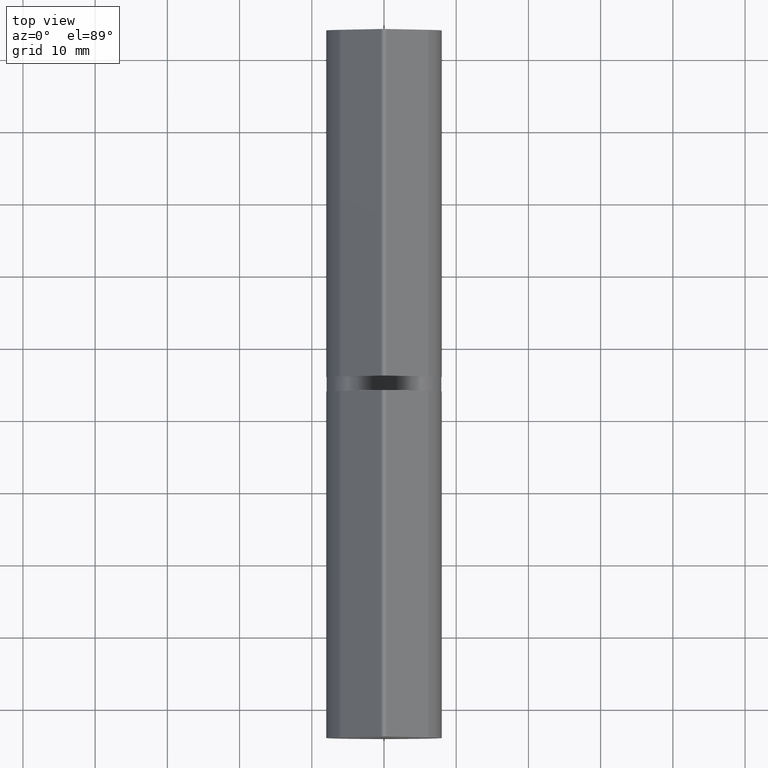
[diagram: clean part render]
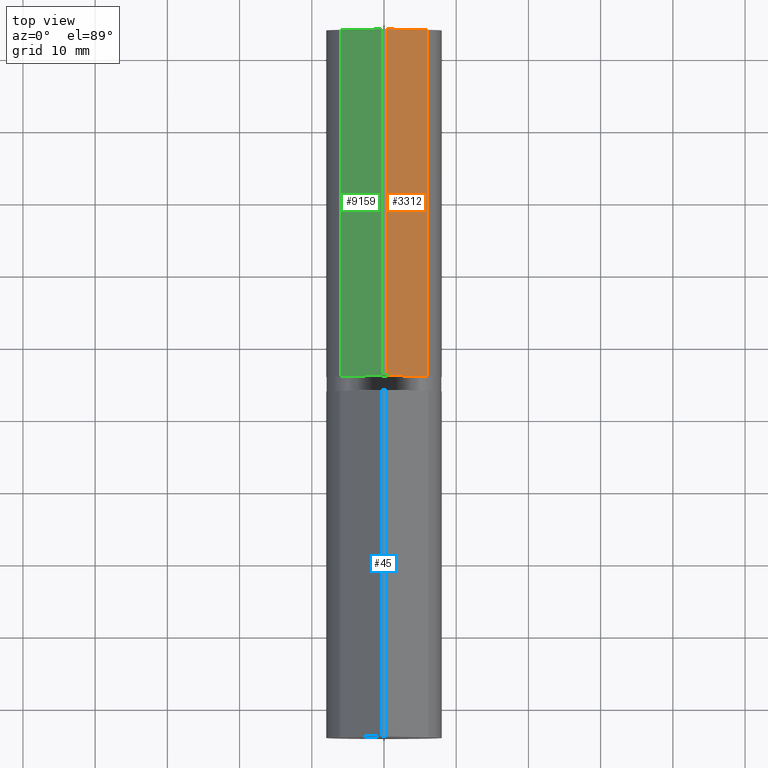
[diagram: same view with three faces highlighted in distinct colors, each labeled with its STEP entity id]
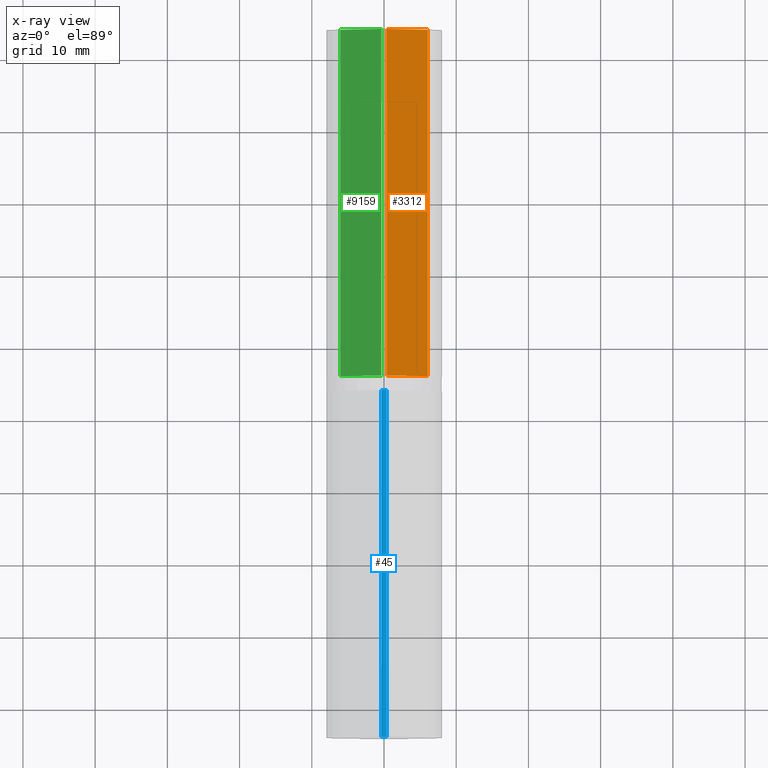
[diagram: x-ray of the same camera — body ghosted, the three highlighted faces saturated]
A machine part, top view with three faces highlighted in distinct colors.
The next image is the same camera in x-ray (body ghosted, the three faces saturated) — at least one of them is partly hidden behind the body in this view.
Their STEP definitions:

[orange] entity #3312 — the highlighted planar face has unit normal (-0.7581, 0, -0.6522).
#803 = LINE ( 'NONE', #10512, #13186 ) ;
#1313 = DIRECTION ( 'NONE',  ( 0.6521739130434782705, 0.000000000000000000, 0.7580693814853345369 ) ) ;
#1409 = LINE ( 'NONE', #12763, #9427 ) ;
#1417 = AXIS2_PLACEMENT_3D ( 'NONE', #5837, #11100, #2867 ) ;
#1641 = FACE_OUTER_BOUND ( 'NONE', #11078, .T. ) ;
#2027 = CARTESIAN_POINT ( 'NONE',  ( -6.064555051882675407, -24.00000000000000711, 5.217391304347824388 ) ) ;
#2230 = CARTESIAN_POINT ( 'NONE',  ( -0.3790346907426674350, -24.00000000000000711, 11.82608695652173658 ) ) ;
#2867 = DIRECTION ( 'NONE',  ( -0.6521739130434781595, 0.000000000000000000, -0.7580693814853346479 ) ) ;
#3312 = ADVANCED_FACE ( 'NONE', ( #1641 ), #10059, .F. ) ;
#3444 = VERTEX_POINT ( 'NONE', #4388 ) ;
#3669 = VECTOR ( 'NONE', #1313, 1000.000000000000000 ) ;
#4388 = CARTESIAN_POINT ( 'NONE',  ( -0.3790346907426674350, 24.00000000000000711, 11.82608695652173658 ) ) ;
#4417 = ORIENTED_EDGE ( 'NONE', *, *, #7807, .F. ) ;
#5598 = VECTOR ( 'NONE', #5873, 1000.000000000000000 ) ;
#5837 = CARTESIAN_POINT ( 'NONE',  ( -6.064555051882675407, 24.00000000000000711, 5.217391304347824388 ) ) ;
#5873 = DIRECTION ( 'NONE',  ( 0.000000000000000000, -1.000000000000000000, 0.000000000000000000 ) ) ;
#6264 = CARTESIAN_POINT ( 'NONE',  ( -6.064555051882675407, 24.00000000000000711, 5.217391304347824388 ) ) ;
#6413 = EDGE_CURVE ( 'NONE', #9375, #9726, #803, .T. ) ;
#6553 = CARTESIAN_POINT ( 'NONE',  ( -6.064555051882675407, 24.00000000000000711, 5.217391304347824388 ) ) ;
#6781 = EDGE_CURVE ( 'NONE', #8315, #3444, #9133, .T. ) ;
#7807 = EDGE_CURVE ( 'NONE', #3444, #9726, #8313, .T. ) ;
#8287 = ORIENTED_EDGE ( 'NONE', *, *, #6413, .T. ) ;
#8313 = LINE ( 'NONE', #9975, #5598 ) ;
#8315 = VERTEX_POINT ( 'NONE', #6553 ) ;
#9107 = EDGE_CURVE ( 'NONE', #8315, #9375, #1409, .T. ) ;
#9133 = LINE ( 'NONE', #6264, #3669 ) ;
#9225 = ORIENTED_EDGE ( 'NONE', *, *, #9107, .T. ) ;
#9375 = VERTEX_POINT ( 'NONE', #2027 ) ;
#9427 = VECTOR ( 'NONE', #12801, 1000.000000000000000 ) ;
#9726 = VERTEX_POINT ( 'NONE', #2230 ) ;
#9882 = ORIENTED_EDGE ( 'NONE', *, *, #6781, .F. ) ;
#9975 = CARTESIAN_POINT ( 'NONE',  ( -0.3790346907426674350, 24.00000000000000711, 11.82608695652173658 ) ) ;
#10059 = PLANE ( 'NONE',  #1417 ) ;
#10512 = CARTESIAN_POINT ( 'NONE',  ( -6.064555051882675407, -24.00000000000000711, 5.217391304347824388 ) ) ;
#11078 = EDGE_LOOP ( 'NONE', ( #8287, #4417, #9882, #9225 ) ) ;
#11100 = DIRECTION ( 'NONE',  ( 0.7580693814853346479, 0.000000000000000000, -0.6521739130434781595 ) ) ;
#12506 = DIRECTION ( 'NONE',  ( 0.6521739130434782705, 0.000000000000000000, 0.7580693814853345369 ) ) ;
#12763 = CARTESIAN_POINT ( 'NONE',  ( -6.064555051882675407, 24.00000000000000711, 5.217391304347824388 ) ) ;
#12801 = DIRECTION ( 'NONE',  ( 0.000000000000000000, -1.000000000000000000, 0.000000000000000000 ) ) ;
#13186 = VECTOR ( 'NONE', #12506, 1000.000000000000000 ) ;

[blue] entity #45 — the highlighted cylindrical surface (edge-blend (fillet) strip) has radius 0.5 mm, axis along (-0, -1, -0).
#45 = ADVANCED_FACE ( 'NONE', ( #7596 ), #2153, .T. ) ;
#615 = CARTESIAN_POINT ( 'NONE',  ( 0.3790346907426678236, 24.00000000000000000, 11.82608695652174013 ) ) ;
#1393 = DIRECTION ( 'NONE',  ( -0.000000000000000000, -1.000000000000000000, -0.000000000000000000 ) ) ;
#1948 = VERTEX_POINT ( 'NONE', #2628 ) ;
#2116 = VERTEX_POINT ( 'NONE', #615 ) ;
#2153 = CYLINDRICAL_SURFACE ( 'NONE', #4824, 0.5000000000000004441 ) ;
#2628 = CARTESIAN_POINT ( 'NONE',  ( -0.3790346907426679901, 24.00000000000000000, 11.82608695652174013 ) ) ;
#3088 = CARTESIAN_POINT ( 'NONE',  ( -0.3790346907426679901, -24.00000000000000000, 11.82608695652174013 ) ) ;
#3769 = CARTESIAN_POINT ( 'NONE',  ( 0.000000000000000000, -24.00000000000000000, 11.50000000000000000 ) ) ;
#3829 = CARTESIAN_POINT ( 'NONE',  ( 0.000000000000000000, 24.00000000000000000, 11.50000000000000000 ) ) ;
#4180 = EDGE_CURVE ( 'NONE', #1948, #9915, #7558, .T. ) ;
#4456 = CIRCLE ( 'NONE', #11753, 0.5000000000000004441 ) ;
#4824 = AXIS2_PLACEMENT_3D ( 'NONE', #5600, #1393, #8719 ) ;
#5537 = ORIENTED_EDGE ( 'NONE', *, *, #12728, .F. ) ;
#5600 = CARTESIAN_POINT ( 'NONE',  ( 0.000000000000000000, 24.00000000000000000, 11.50000000000000000 ) ) ;
#5742 = ORIENTED_EDGE ( 'NONE', *, *, #4180, .T. ) ;
#6074 = DIRECTION ( 'NONE',  ( -0.000000000000000000, -1.000000000000000000, -0.000000000000000000 ) ) ;
#6911 = DIRECTION ( 'NONE',  ( 0.000000000000000000, 0.000000000000000000, 1.000000000000000000 ) ) ;
#7201 = LINE ( 'NONE', #12164, #11061 ) ;
#7558 = LINE ( 'NONE', #10312, #13364 ) ;
#7596 = FACE_OUTER_BOUND ( 'NONE', #10105, .T. ) ;
#8242 = ORIENTED_EDGE ( 'NONE', *, *, #8744, .T. ) ;
#8486 = EDGE_CURVE ( 'NONE', #1948, #2116, #4456, .T. ) ;
#8719 = DIRECTION ( 'NONE',  ( 0.000000000000000000, 0.000000000000000000, -1.000000000000000000 ) ) ;
#8744 = EDGE_CURVE ( 'NONE', #9915, #12622, #11200, .T. ) ;
#9110 = ORIENTED_EDGE ( 'NONE', *, *, #8486, .F. ) ;
#9915 = VERTEX_POINT ( 'NONE', #3088 ) ;
#10105 = EDGE_LOOP ( 'NONE', ( #8242, #5537, #9110, #5742 ) ) ;
#10312 = CARTESIAN_POINT ( 'NONE',  ( -0.3790346907426679901, 24.00000000000000000, 11.82608695652174013 ) ) ;
#10360 = AXIS2_PLACEMENT_3D ( 'NONE', #3769, #12091, #6911 ) ;
#10972 = DIRECTION ( 'NONE',  ( 0.000000000000000000, 1.000000000000000000, 0.000000000000000000 ) ) ;
#11006 = DIRECTION ( 'NONE',  ( 0.000000000000000000, 0.000000000000000000, 1.000000000000000000 ) ) ;
#11061 = VECTOR ( 'NONE', #6074, 1000.000000000000000 ) ;
#11200 = CIRCLE ( 'NONE', #10360, 0.5000000000000004441 ) ;
#11753 = AXIS2_PLACEMENT_3D ( 'NONE', #3829, #10972, #11006 ) ;
#12091 = DIRECTION ( 'NONE',  ( 0.000000000000000000, 1.000000000000000000, 0.000000000000000000 ) ) ;
#12164 = CARTESIAN_POINT ( 'NONE',  ( 0.3790346907426678236, 24.00000000000000000, 11.82608695652174013 ) ) ;
#12387 = DIRECTION ( 'NONE',  ( -0.000000000000000000, -1.000000000000000000, -0.000000000000000000 ) ) ;
#12622 = VERTEX_POINT ( 'NONE', #12942 ) ;
#12728 = EDGE_CURVE ( 'NONE', #2116, #12622, #7201, .T. ) ;
#12942 = CARTESIAN_POINT ( 'NONE',  ( 0.3790346907426678236, -24.00000000000000000, 11.82608695652174013 ) ) ;
#13364 = VECTOR ( 'NONE', #12387, 1000.000000000000000 ) ;

[green] entity #9159 — the highlighted planar face has unit normal (0.7581, -0, -0.6522).
#21 = CARTESIAN_POINT ( 'NONE',  ( 0.3790346907426672685, 24.00000000000000711, 11.82608695652173658 ) ) ;
#619 = CARTESIAN_POINT ( 'NONE',  ( 0.3790346907426672685, 24.00000000000000711, 11.82608695652173658 ) ) ;
#669 = DIRECTION ( 'NONE',  ( -0.6521739130434781595, 0.000000000000000000, 0.7580693814853346479 ) ) ;
#690 = CARTESIAN_POINT ( 'NONE',  ( 6.064555051882675407, 24.00000000000000711, 5.217391304347824388 ) ) ;
#1092 = AXIS2_PLACEMENT_3D ( 'NONE', #619, #4791, #669 ) ;
#1235 = VERTEX_POINT ( 'NONE', #4015 ) ;
#1401 = VERTEX_POINT ( 'NONE', #11069 ) ;
#1986 = EDGE_CURVE ( 'NONE', #3372, #1401, #4369, .T. ) ;
#2458 = CARTESIAN_POINT ( 'NONE',  ( 0.3790346907426672685, -24.00000000000000711, 11.82608695652173658 ) ) ;
#3308 = ORIENTED_EDGE ( 'NONE', *, *, #7660, .F. ) ;
#3372 = VERTEX_POINT ( 'NONE', #13313 ) ;
#3572 = DIRECTION ( 'NONE',  ( 0.6521739130434782705, -0.000000000000000000, -0.7580693814853345369 ) ) ;
#3837 = VECTOR ( 'NONE', #12867, 1000.000000000000000 ) ;
#3977 = ORIENTED_EDGE ( 'NONE', *, *, #6233, .F. ) ;
#4015 = CARTESIAN_POINT ( 'NONE',  ( 6.064555051882675407, -24.00000000000000711, 5.217391304347824388 ) ) ;
#4369 = LINE ( 'NONE', #21, #9983 ) ;
#4791 = DIRECTION ( 'NONE',  ( -0.7580693814853346479, 0.000000000000000000, -0.6521739130434781595 ) ) ;
#5162 = VECTOR ( 'NONE', #3572, 1000.000000000000000 ) ;
#5174 = LINE ( 'NONE', #6976, #5162 ) ;
#5660 = CARTESIAN_POINT ( 'NONE',  ( 6.064555051882675407, 24.00000000000000711, 5.217391304347824388 ) ) ;
#6053 = DIRECTION ( 'NONE',  ( 0.000000000000000000, -1.000000000000000000, 0.000000000000000000 ) ) ;
#6233 = EDGE_CURVE ( 'NONE', #3372, #7621, #5174, .T. ) ;
#6976 = CARTESIAN_POINT ( 'NONE',  ( 0.3790346907426672685, 24.00000000000000711, 11.82608695652173658 ) ) ;
#7446 = EDGE_LOOP ( 'NONE', ( #8446, #3308, #3977, #8931 ) ) ;
#7621 = VERTEX_POINT ( 'NONE', #5660 ) ;
#7660 = EDGE_CURVE ( 'NONE', #7621, #1235, #9285, .T. ) ;
#7687 = DIRECTION ( 'NONE',  ( 0.6521739130434782705, -0.000000000000000000, -0.7580693814853345369 ) ) ;
#8446 = ORIENTED_EDGE ( 'NONE', *, *, #11180, .T. ) ;
#8743 = VECTOR ( 'NONE', #7687, 1000.000000000000000 ) ;
#8931 = ORIENTED_EDGE ( 'NONE', *, *, #1986, .T. ) ;
#9159 = ADVANCED_FACE ( 'NONE', ( #13153 ), #12896, .F. ) ;
#9285 = LINE ( 'NONE', #690, #3837 ) ;
#9983 = VECTOR ( 'NONE', #6053, 1000.000000000000000 ) ;
#11069 = CARTESIAN_POINT ( 'NONE',  ( 0.3790346907426672685, -24.00000000000000711, 11.82608695652173658 ) ) ;
#11180 = EDGE_CURVE ( 'NONE', #1401, #1235, #11490, .T. ) ;
#11490 = LINE ( 'NONE', #2458, #8743 ) ;
#12867 = DIRECTION ( 'NONE',  ( 0.000000000000000000, -1.000000000000000000, 0.000000000000000000 ) ) ;
#12896 = PLANE ( 'NONE',  #1092 ) ;
#13153 = FACE_OUTER_BOUND ( 'NONE', #7446, .T. ) ;
#13313 = CARTESIAN_POINT ( 'NONE',  ( 0.3790346907426672685, 24.00000000000000711, 11.82608695652173658 ) ) ;